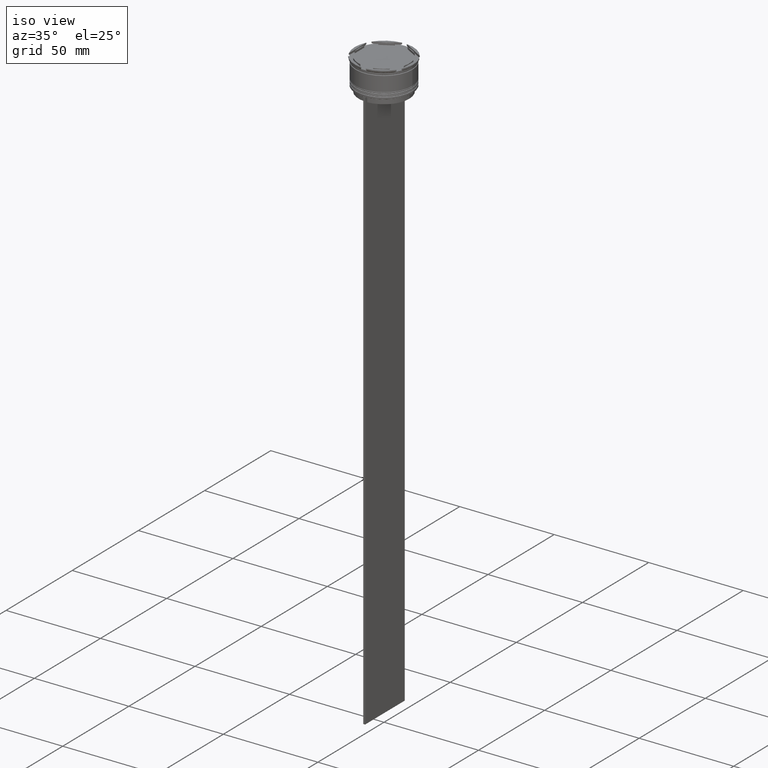
[diagram: clean part render]
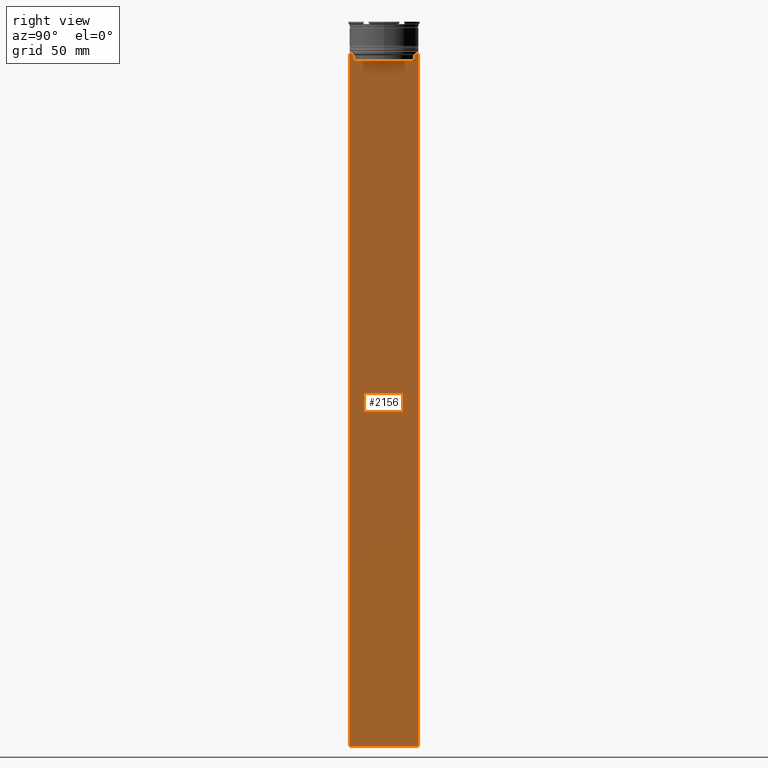
[diagram: tour spotlight — one face highlighted and labeled with its STEP entity id]
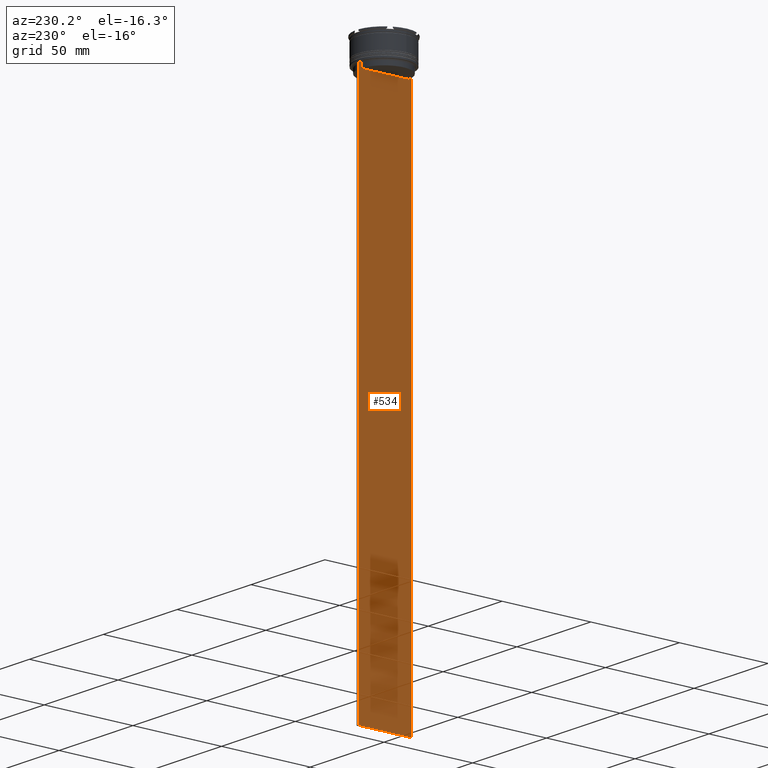
[diagram: tour spotlight — one face highlighted and labeled with its STEP entity id]
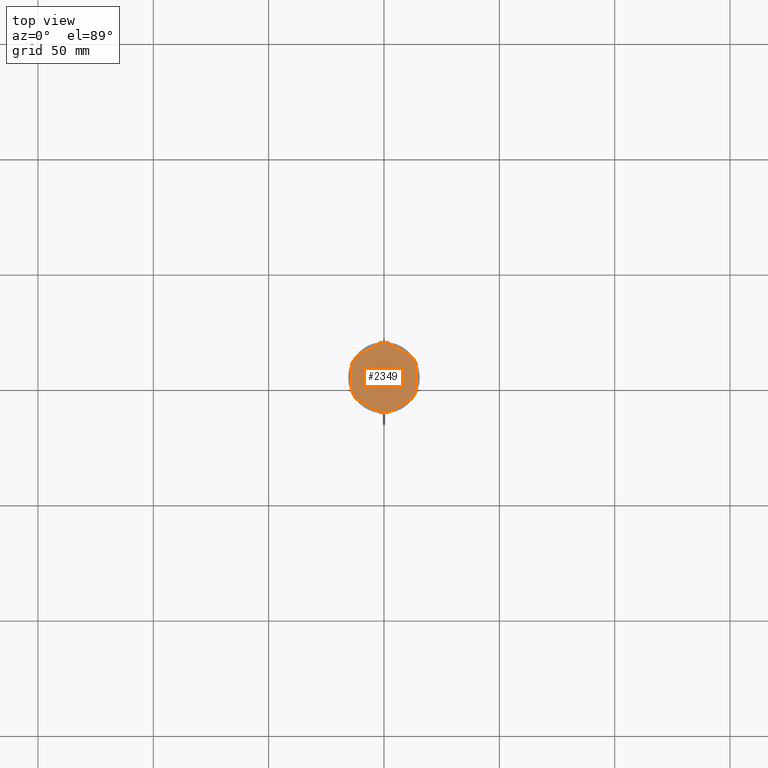
[diagram: tour spotlight — one face highlighted and labeled with its STEP entity id]
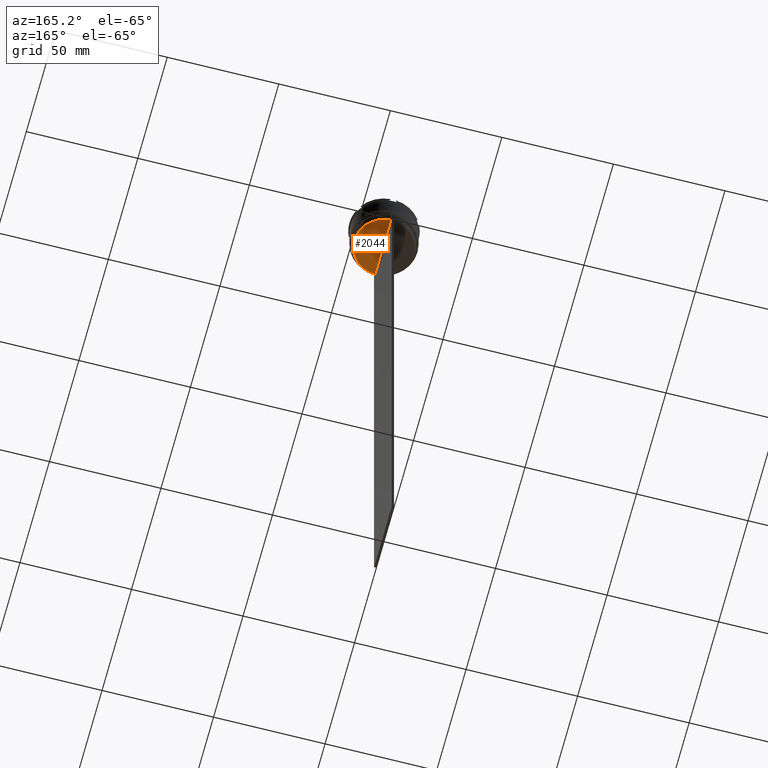
[diagram: tour spotlight — one face highlighted and labeled with its STEP entity id]
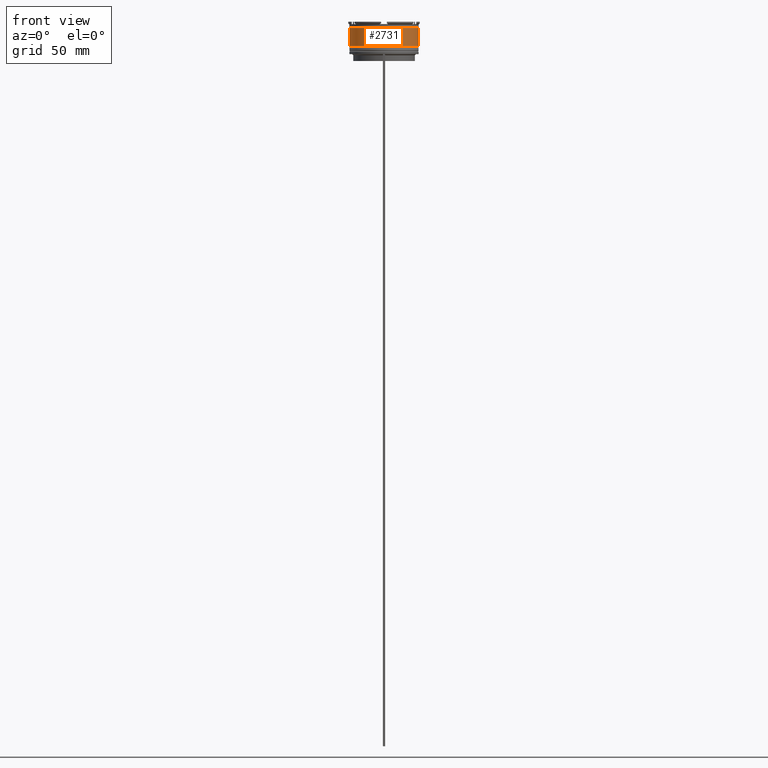
[diagram: tour spotlight — one face highlighted and labeled with its STEP entity id]
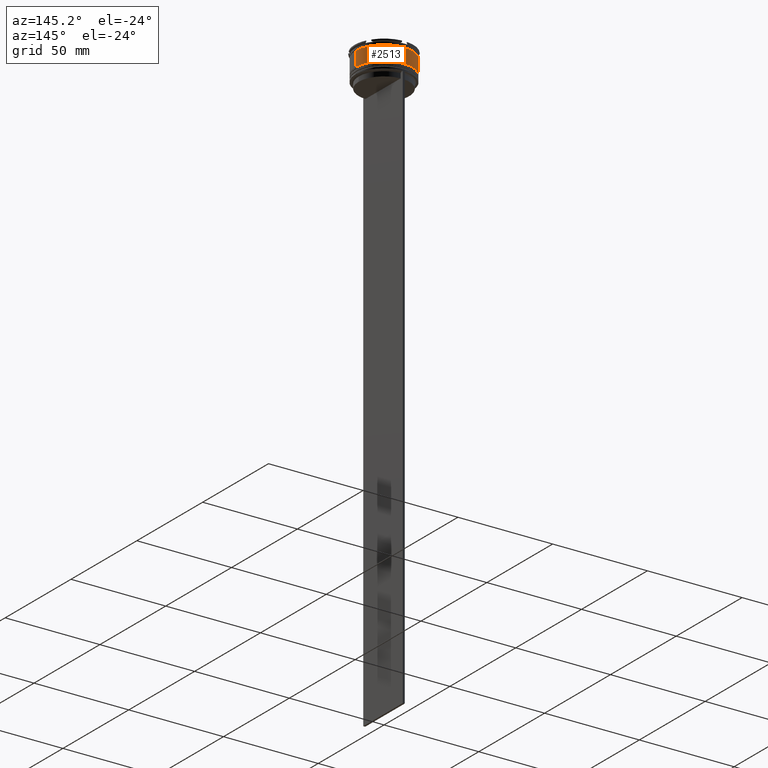
[diagram: tour spotlight — one face highlighted and labeled with its STEP entity id]
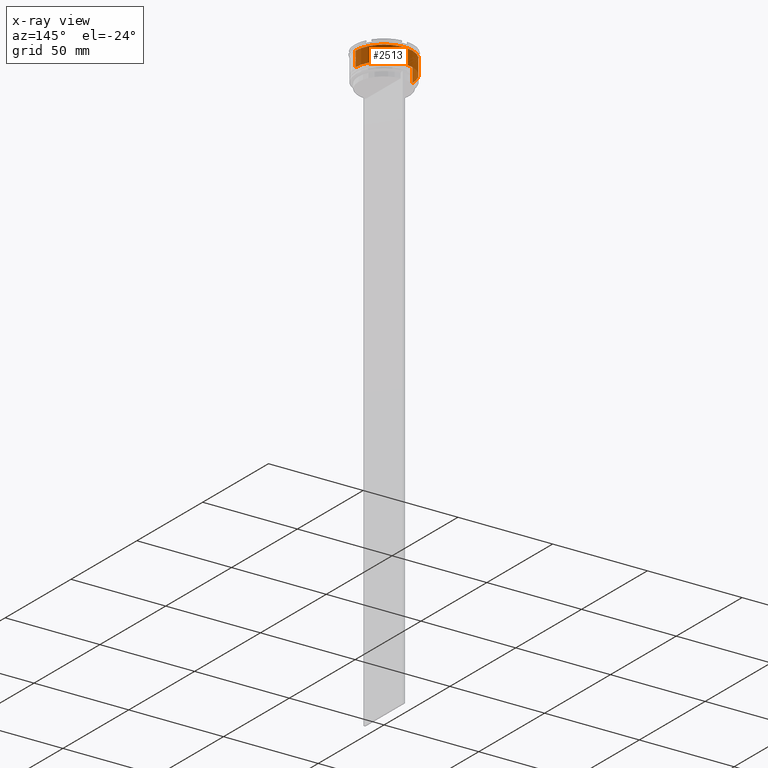
[diagram: x-ray of the same camera — body ghosted, this tour face saturated]
A machine part: a face-by-face anatomy tour. The part has 100 B-rep faces; the first image is the clean iso view, then the 6 largest visible faces are spotlighted one at a time (largest first), each with its STEP entity span.

Face 1 — right view, entity #2156. In plain terms, the highlighted planar face has unit normal (-1, 0, 0).
Definition (entity closure, byte-faithful):
#30 = DIRECTION ( 'NONE',  ( 0.000000000000000000, -1.000000000000000000, 0.000000000000000000 ) ) ;
#59 = CARTESIAN_POINT ( 'NONE',  ( 0.5000000000000001110, 13.39066839257847263, -14.49999999999999822 ) ) ;
#78 = AXIS2_PLACEMENT_3D ( 'NONE', #2339, #344, #1903 ) ;
#114 = EDGE_CURVE ( 'NONE', #909, #617, #241, .T. ) ;
#123 = ORIENTED_EDGE ( 'NONE', *, *, #451, .T. ) ;
#145 = CARTESIAN_POINT ( 'NONE',  ( 0.5000000000000001110, -13.39066839257847086, -17.00000000000000000 ) ) ;
#151 = EDGE_CURVE ( 'NONE', #1222, #1188, #2480, .T. ) ;
#200 = VERTEX_POINT ( 'NONE', #59 ) ;
#236 = DIRECTION ( 'NONE',  ( 0.000000000000000000, -1.000000000000000000, 0.000000000000000000 ) ) ;
#241 = LINE ( 'NONE', #2452, #2079 ) ;
#252 = VERTEX_POINT ( 'NONE', #1183 ) ;
#292 = EDGE_CURVE ( 'NONE', #252, #2075, #1887, .T. ) ;
#302 = LINE ( 'NONE', #1171, #1402 ) ;
#325 = ORIENTED_EDGE ( 'NONE', *, *, #2605, .T. ) ;
#344 = DIRECTION ( 'NONE',  ( -1.000000000000000000, 0.000000000000000000, 0.000000000000000000 ) ) ;
#382 = ORIENTED_EDGE ( 'NONE', *, *, #2587, .T. ) ;
#412 = VERTEX_POINT ( 'NONE', #2182 ) ;
#451 = EDGE_CURVE ( 'NONE', #412, #909, #2813, .T. ) ;
#455 = CARTESIAN_POINT ( 'NONE',  ( 0.5000000000000001110, -15.00000000000000355, -14.00000000000000178 ) ) ;
#544 = ORIENTED_EDGE ( 'NONE', *, *, #1010, .T. ) ;
#546 = DIRECTION ( 'NONE',  ( 0.000000000000000000, 1.000000000000000000, 0.000000000000000000 ) ) ;
#556 = VECTOR ( 'NONE', #750, 1000.000000000000000 ) ;
#571 = CARTESIAN_POINT ( 'NONE',  ( 0.5000000000000001110, -13.39066839257847263, -14.49999999999999822 ) ) ;
#574 = ORIENTED_EDGE ( 'NONE', *, *, #151, .T. ) ;
#617 = VERTEX_POINT ( 'NONE', #571 ) ;
#656 = ORIENTED_EDGE ( 'NONE', *, *, #1392, .F. ) ;
#736 = CARTESIAN_POINT ( 'NONE',  ( 0.5000000000000001110, -15.00000000000000355, -14.00000000000000178 ) ) ;
#750 = DIRECTION ( 'NONE',  ( 0.000000000000000000, 0.000000000000000000, -1.000000000000000000 ) ) ;
#772 = CARTESIAN_POINT ( 'NONE',  ( 0.5000000000000001110, -15.00000000000000355, -314.0000000000000000 ) ) ;
#816 = CARTESIAN_POINT ( 'NONE',  ( 0.5000000000000001110, -13.89100428334828230, -14.00000000000000178 ) ) ;
#850 = VECTOR ( 'NONE', #236, 1000.000000000000000 ) ;
#866 = DIRECTION ( 'NONE',  ( 0.000000000000000000, 0.000000000000000000, -1.000000000000000000 ) ) ;
#877 = VERTEX_POINT ( 'NONE', #816 ) ;
#909 = VERTEX_POINT ( 'NONE', #145 ) ;
#1010 = EDGE_CURVE ( 'NONE', #200, #412, #2058, .T. ) ;
#1147 = ORIENTED_EDGE ( 'NONE', *, *, #1269, .T. ) ;
#1163 = VECTOR ( 'NONE', #1343, 1000.000000000000000 ) ;
#1171 = CARTESIAN_POINT ( 'NONE',  ( 0.5000000000000001110, -15.00000000000000355, -14.00000000000000178 ) ) ;
#1183 = CARTESIAN_POINT ( 'NONE',  ( 0.5000000000000001110, -15.00000000000000355, -314.0000000000000000 ) ) ;
#1188 = VERTEX_POINT ( 'NONE', #1815 ) ;
#1191 = CARTESIAN_POINT ( 'NONE',  ( 0.5000000000000001110, 13.55744911232272543, -14.33333542444994002 ) ) ;
#1222 = VERTEX_POINT ( 'NONE', #2636 ) ;
#1263 = CARTESIAN_POINT ( 'NONE',  ( 0.5000000000000001110, 14.99999999999999645, 16.01666203960726165 ) ) ;
#1269 = EDGE_CURVE ( 'NONE', #1188, #200, #2140, .T. ) ;
#1277 = CARTESIAN_POINT ( 'NONE',  ( 0.5000000000000001110, -13.39066839257847263, -14.49999999999999822 ) ) ;
#1343 = DIRECTION ( 'NONE',  ( 0.000000000000000000, -1.000000000000000000, 0.000000000000000000 ) ) ;
#1360 = DIRECTION ( 'NONE',  ( -0.000000000000000000, -0.000000000000000000, 1.000000000000000000 ) ) ;
#1392 = EDGE_CURVE ( 'NONE', #1519, #2075, #2628, .T. ) ;
#1400 = VECTOR ( 'NONE', #30, 1000.000000000000000 ) ;
#1402 = VECTOR ( 'NONE', #1861, 1000.000000000000000 ) ;
#1417 = ORIENTED_EDGE ( 'NONE', *, *, #1606, .T. ) ;
#1446 = CARTESIAN_POINT ( 'NONE',  ( 0.5000000000000001110, 13.72422766736833744, -14.16666868251365052 ) ) ;
#1498 = CARTESIAN_POINT ( 'NONE',  ( 0.5000000000000001110, -14.89160837518903513, -14.00000000000000178 ) ) ;
#1508 = CARTESIAN_POINT ( 'NONE',  ( 0.5000000000000001110, -15.00000000000000355, -14.00000000000000178 ) ) ;
#1519 = VERTEX_POINT ( 'NONE', #2692 ) ;
#1530 = ORIENTED_EDGE ( 'NONE', *, *, #114, .T. ) ;
#1578 = ORIENTED_EDGE ( 'NONE', *, *, #292, .T. ) ;
#1606 = EDGE_CURVE ( 'NONE', #1722, #252, #2557, .T. ) ;
#1722 = VERTEX_POINT ( 'NONE', #1508 ) ;
#1763 = CARTESIAN_POINT ( 'NONE',  ( 0.5000000000000001110, -15.00000000000000355, -14.00000000000000178 ) ) ;
#1784 = LINE ( 'NONE', #736, #1400 ) ;
#1815 = CARTESIAN_POINT ( 'NONE',  ( 0.5000000000000001110, 13.89100428334828230, -14.00000000000000178 ) ) ;
#1861 = DIRECTION ( 'NONE',  ( 0.000000000000000000, -1.000000000000000000, 0.000000000000000000 ) ) ;
#1887 = LINE ( 'NONE', #772, #1949 ) ;
#1903 = DIRECTION ( 'NONE',  ( 0.000000000000000000, 0.000000000000000000, 1.000000000000000000 ) ) ;
#1921 = CARTESIAN_POINT ( 'NONE',  ( 0.5000000000000001110, 13.39066839257847263, -14.49999999999999822 ) ) ;
#1923 = CARTESIAN_POINT ( 'NONE',  ( 0.5000000000000001110, 13.39066839257847263, 0.000000000000000000 ) ) ;
#1929 = B_SPLINE_CURVE_WITH_KNOTS ( 'NONE', 3,
 ( #1277, #2643, #2164, #2216 ),
 .UNSPECIFIED., .F., .F.,
 ( 4, 4 ),
 ( 0.06160226316123722928, 0.06231007364084064498 ),
 .UNSPECIFIED. ) ;
#1934 = CARTESIAN_POINT ( 'NONE',  ( 0.5000000000000001110, 14.99999999999999645, -314.0000000000000000 ) ) ;
#1949 = VECTOR ( 'NONE', #546, 1000.000000000000000 ) ;
#1963 = EDGE_CURVE ( 'NONE', #2570, #1722, #302, .T. ) ;
#1979 = LINE ( 'NONE', #1763, #850 ) ;
#2005 = VECTOR ( 'NONE', #866, 1000.000000000000000 ) ;
#2058 = LINE ( 'NONE', #1923, #556 ) ;
#2075 = VERTEX_POINT ( 'NONE', #1934 ) ;
#2079 = VECTOR ( 'NONE', #1360, 1000.000000000000000 ) ;
#2140 = B_SPLINE_CURVE_WITH_KNOTS ( 'NONE', 3,
 ( #2312, #1446, #1191, #1921 ),
 .UNSPECIFIED., .F., .F.,
 ( 4, 4 ),
 ( 0.02359665025569774102, 0.02430399458637444096 ),
 .UNSPECIFIED. ) ;
#2156 = ADVANCED_FACE ( 'NONE', ( #2828 ), #2568, .F. ) ;
#2164 = CARTESIAN_POINT ( 'NONE',  ( 0.5000000000000001110, -13.72422766745777167, -14.16666868242427135 ) ) ;
#2166 = DIRECTION ( 'NONE',  ( 0.000000000000000000, -1.000000000000000000, 0.000000000000000000 ) ) ;
#2182 = CARTESIAN_POINT ( 'NONE',  ( 0.5000000000000001110, 13.39066839257847086, -17.00000000000000000 ) ) ;
#2186 = VECTOR ( 'NONE', #2166, 1000.000000000000000 ) ;
#2216 = CARTESIAN_POINT ( 'NONE',  ( 0.5000000000000001110, -13.89100428334828230, -14.00000000000000178 ) ) ;
#2253 = VECTOR ( 'NONE', #2773, 1000.000000000000000 ) ;
#2312 = CARTESIAN_POINT ( 'NONE',  ( 0.5000000000000001110, 13.89100428334828230, -14.00000000000000178 ) ) ;
#2339 = CARTESIAN_POINT ( 'NONE',  ( 0.5000000000000001110, -15.00000000000000355, 16.01666203960726165 ) ) ;
#2400 = EDGE_LOOP ( 'NONE', ( #574, #1147, #544, #123, #1530, #325, #382, #2881, #1417, #1578, #656, #2690 ) ) ;
#2452 = CARTESIAN_POINT ( 'NONE',  ( 0.5000000000000001110, -13.39066839257847263, 0.000000000000000000 ) ) ;
#2480 = LINE ( 'NONE', #455, #1163 ) ;
#2557 = LINE ( 'NONE', #2736, #2253 ) ;
#2568 = PLANE ( 'NONE',  #78 ) ;
#2570 = VERTEX_POINT ( 'NONE', #1498 ) ;
#2587 = EDGE_CURVE ( 'NONE', #877, #2570, #1979, .T. ) ;
#2605 = EDGE_CURVE ( 'NONE', #617, #877, #1929, .T. ) ;
#2628 = LINE ( 'NONE', #1263, #2005 ) ;
#2631 = CARTESIAN_POINT ( 'NONE',  ( 0.5000000000000001110, 13.40000000000000391, -17.00000000000000000 ) ) ;
#2636 = CARTESIAN_POINT ( 'NONE',  ( 0.5000000000000001110, 14.89160837518903513, -14.00000000000000178 ) ) ;
#2643 = CARTESIAN_POINT ( 'NONE',  ( 0.5000000000000001110, -13.55744911241550099, -14.33333542435722663 ) ) ;
#2688 = EDGE_CURVE ( 'NONE', #1519, #1222, #1784, .T. ) ;
#2690 = ORIENTED_EDGE ( 'NONE', *, *, #2688, .T. ) ;
#2692 = CARTESIAN_POINT ( 'NONE',  ( 0.5000000000000001110, 14.99999999999999645, -14.00000000000000178 ) ) ;
#2736 = CARTESIAN_POINT ( 'NONE',  ( 0.5000000000000001110, -15.00000000000000355, 16.01666203960726165 ) ) ;
#2773 = DIRECTION ( 'NONE',  ( 0.000000000000000000, 0.000000000000000000, -1.000000000000000000 ) ) ;
#2813 = LINE ( 'NONE', #2631, #2186 ) ;
#2828 = FACE_OUTER_BOUND ( 'NONE', #2400, .T. ) ;
#2881 = ORIENTED_EDGE ( 'NONE', *, *, #1963, .T. ) ;

Face 2 — auxiliary view, entity #534. In plain terms, the highlighted planar face has unit normal (-1, 0, 0).
Definition (entity closure, byte-faithful):
#14 = ORIENTED_EDGE ( 'NONE', *, *, #1876, .F. ) ;
#55 = CARTESIAN_POINT ( 'NONE',  ( -0.4999999999999998890, 14.99999999999999645, -314.0000000000000000 ) ) ;
#87 = ORIENTED_EDGE ( 'NONE', *, *, #1848, .F. ) ;
#128 = DIRECTION ( 'NONE',  ( 0.000000000000000000, -1.000000000000000000, 0.000000000000000000 ) ) ;
#158 = LINE ( 'NONE', #584, #1868 ) ;
#215 = LINE ( 'NONE', #440, #2845 ) ;
#227 = FACE_OUTER_BOUND ( 'NONE', #1407, .T. ) ;
#267 = LINE ( 'NONE', #2276, #1678 ) ;
#288 = EDGE_CURVE ( 'NONE', #667, #2224, #563, .T. ) ;
#296 = LINE ( 'NONE', #1881, #2762 ) ;
#303 = EDGE_CURVE ( 'NONE', #588, #2543, #787, .T. ) ;
#323 = DIRECTION ( 'NONE',  ( 0.000000000000000000, -1.000000000000000000, 0.000000000000000000 ) ) ;
#336 = CARTESIAN_POINT ( 'NONE',  ( -0.4999999999999998890, 13.89100428334828230, -14.00000000000000178 ) ) ;
#343 = DIRECTION ( 'NONE',  ( -0.000000000000000000, -0.000000000000000000, 1.000000000000000000 ) ) ;
#345 = ORIENTED_EDGE ( 'NONE', *, *, #1590, .F. ) ;
#386 = ORIENTED_EDGE ( 'NONE', *, *, #2268, .F. ) ;
#440 = CARTESIAN_POINT ( 'NONE',  ( -0.4999999999999998890, -15.00000000000000355, -314.0000000000000000 ) ) ;
#453 = CARTESIAN_POINT ( 'NONE',  ( -0.4999999999999998890, -15.00000000000000355, -14.00000000000000178 ) ) ;
#534 = ADVANCED_FACE ( 'NONE', ( #227 ), #1983, .T. ) ;
#563 = LINE ( 'NONE', #2566, #1532 ) ;
#584 = CARTESIAN_POINT ( 'NONE',  ( -0.4999999999999998890, -15.00000000000000355, -14.00000000000000178 ) ) ;
#588 = VERTEX_POINT ( 'NONE', #2185 ) ;
#601 = CARTESIAN_POINT ( 'NONE',  ( -0.4999999999999998890, 13.72422766736833566, -14.16666868251365052 ) ) ;
#623 = CARTESIAN_POINT ( 'NONE',  ( -0.4999999999999998890, 13.39066839257847263, -14.49999999999999822 ) ) ;
#635 = LINE ( 'NONE', #1551, #2244 ) ;
#646 = LINE ( 'NONE', #453, #1585 ) ;
#667 = VERTEX_POINT ( 'NONE', #2671 ) ;
#669 = VERTEX_POINT ( 'NONE', #673 ) ;
#672 = VECTOR ( 'NONE', #1399, 1000.000000000000000 ) ;
#673 = CARTESIAN_POINT ( 'NONE',  ( -0.4999999999999998890, -14.89160837518903513, -14.00000000000000178 ) ) ;
#711 = VERTEX_POINT ( 'NONE', #2620 ) ;
#771 = CARTESIAN_POINT ( 'NONE',  ( -0.4999999999999998890, -13.39066839257847263, -14.49999999999999822 ) ) ;
#787 = LINE ( 'NONE', #1455, #1770 ) ;
#827 = VERTEX_POINT ( 'NONE', #55 ) ;
#940 = VERTEX_POINT ( 'NONE', #2859 ) ;
#986 = ORIENTED_EDGE ( 'NONE', *, *, #1961, .F. ) ;
#1100 = VERTEX_POINT ( 'NONE', #1685 ) ;
#1124 = ORIENTED_EDGE ( 'NONE', *, *, #1227, .F. ) ;
#1157 = CARTESIAN_POINT ( 'NONE',  ( -0.4999999999999998890, -13.72422766745777345, -14.16666868242426958 ) ) ;
#1177 = CARTESIAN_POINT ( 'NONE',  ( -0.4999999999999998890, -15.00000000000000355, 16.01666203960726165 ) ) ;
#1227 = EDGE_CURVE ( 'NONE', #1100, #2277, #635, .T. ) ;
#1251 = ORIENTED_EDGE ( 'NONE', *, *, #1751, .F. ) ;
#1252 = AXIS2_PLACEMENT_3D ( 'NONE', #1177, #2875, #2646 ) ;
#1273 = DIRECTION ( 'NONE',  ( 0.000000000000000000, -1.000000000000000000, 0.000000000000000000 ) ) ;
#1293 = CARTESIAN_POINT ( 'NONE',  ( -0.4999999999999998890, 13.39066839257847086, -17.00000000000000000 ) ) ;
#1399 = DIRECTION ( 'NONE',  ( 0.000000000000000000, -1.000000000000000000, 0.000000000000000000 ) ) ;
#1407 = EDGE_LOOP ( 'NONE', ( #87, #1987, #2012, #2357, #386, #986, #2682, #1251, #14, #1884, #345, #1124 ) ) ;
#1412 = CARTESIAN_POINT ( 'NONE',  ( -0.4999999999999998890, -13.39066839257847263, -14.49999999999999822 ) ) ;
#1455 = CARTESIAN_POINT ( 'NONE',  ( -0.4999999999999998890, -13.39066839257847263, 0.000000000000000000 ) ) ;
#1532 = VECTOR ( 'NONE', #128, 1000.000000000000000 ) ;
#1551 = CARTESIAN_POINT ( 'NONE',  ( -0.4999999999999998890, 13.39066839257847263, 0.000000000000000000 ) ) ;
#1585 = VECTOR ( 'NONE', #2205, 1000.000000000000000 ) ;
#1590 = EDGE_CURVE ( 'NONE', #2277, #588, #296, .T. ) ;
#1591 = CARTESIAN_POINT ( 'NONE',  ( -0.4999999999999998890, -13.55744911241550277, -14.33333542435722485 ) ) ;
#1602 = CARTESIAN_POINT ( 'NONE',  ( -0.4999999999999998890, -15.00000000000000355, -14.00000000000000178 ) ) ;
#1626 = VECTOR ( 'NONE', #1915, 1000.000000000000000 ) ;
#1628 = DIRECTION ( 'NONE',  ( 0.000000000000000000, 0.000000000000000000, -1.000000000000000000 ) ) ;
#1644 = VERTEX_POINT ( 'NONE', #336 ) ;
#1678 = VECTOR ( 'NONE', #1628, 1000.000000000000000 ) ;
#1685 = CARTESIAN_POINT ( 'NONE',  ( -0.4999999999999998890, 13.39066839257847263, -14.49999999999999822 ) ) ;
#1736 = CARTESIAN_POINT ( 'NONE',  ( -0.4999999999999998890, 14.89160837518903513, -14.00000000000000178 ) ) ;
#1751 = EDGE_CURVE ( 'NONE', #711, #669, #158, .T. ) ;
#1757 = CARTESIAN_POINT ( 'NONE',  ( -0.4999999999999998890, 13.55744911232272543, -14.33333542444994002 ) ) ;
#1770 = VECTOR ( 'NONE', #343, 1000.000000000000000 ) ;
#1848 = EDGE_CURVE ( 'NONE', #1644, #1100, #2420, .T. ) ;
#1868 = VECTOR ( 'NONE', #1273, 1000.000000000000000 ) ;
#1876 = EDGE_CURVE ( 'NONE', #2543, #711, #2679, .T. ) ;
#1881 = CARTESIAN_POINT ( 'NONE',  ( -0.4999999999999998890, 13.40000000000000391, -17.00000000000000000 ) ) ;
#1884 = ORIENTED_EDGE ( 'NONE', *, *, #303, .F. ) ;
#1915 = DIRECTION ( 'NONE',  ( 0.000000000000000000, 0.000000000000000000, -1.000000000000000000 ) ) ;
#1941 = EDGE_CURVE ( 'NONE', #2224, #1644, #2723, .T. ) ;
#1961 = EDGE_CURVE ( 'NONE', #2547, #940, #267, .T. ) ;
#1983 = PLANE ( 'NONE',  #1252 ) ;
#1987 = ORIENTED_EDGE ( 'NONE', *, *, #1941, .F. ) ;
#2012 = ORIENTED_EDGE ( 'NONE', *, *, #288, .F. ) ;
#2185 = CARTESIAN_POINT ( 'NONE',  ( -0.4999999999999998890, -13.39066839257847086, -17.00000000000000000 ) ) ;
#2205 = DIRECTION ( 'NONE',  ( 0.000000000000000000, -1.000000000000000000, 0.000000000000000000 ) ) ;
#2224 = VERTEX_POINT ( 'NONE', #1736 ) ;
#2244 = VECTOR ( 'NONE', #2851, 1000.000000000000000 ) ;
#2254 = EDGE_CURVE ( 'NONE', #669, #2547, #646, .T. ) ;
#2268 = EDGE_CURVE ( 'NONE', #940, #827, #215, .T. ) ;
#2276 = CARTESIAN_POINT ( 'NONE',  ( -0.4999999999999998890, -15.00000000000000355, 16.01666203960726165 ) ) ;
#2277 = VERTEX_POINT ( 'NONE', #1293 ) ;
#2305 = LINE ( 'NONE', #2348, #1626 ) ;
#2348 = CARTESIAN_POINT ( 'NONE',  ( -0.4999999999999998890, 14.99999999999999645, 16.01666203960726165 ) ) ;
#2357 = ORIENTED_EDGE ( 'NONE', *, *, #2484, .T. ) ;
#2398 = DIRECTION ( 'NONE',  ( 0.000000000000000000, 1.000000000000000000, 0.000000000000000000 ) ) ;
#2420 = B_SPLINE_CURVE_WITH_KNOTS ( 'NONE', 3,
 ( #2639, #601, #1757, #623 ),
 .UNSPECIFIED., .F., .F.,
 ( 4, 4 ),
 ( 0.02359665025569773755, 0.02430399458637444096 ),
 .UNSPECIFIED. ) ;
#2484 = EDGE_CURVE ( 'NONE', #667, #827, #2305, .T. ) ;
#2543 = VERTEX_POINT ( 'NONE', #771 ) ;
#2547 = VERTEX_POINT ( 'NONE', #2798 ) ;
#2566 = CARTESIAN_POINT ( 'NONE',  ( -0.4999999999999998890, -15.00000000000000355, -14.00000000000000178 ) ) ;
#2620 = CARTESIAN_POINT ( 'NONE',  ( -0.4999999999999998890, -13.89100428334828230, -14.00000000000000178 ) ) ;
#2639 = CARTESIAN_POINT ( 'NONE',  ( -0.4999999999999998890, 13.89100428334828230, -14.00000000000000178 ) ) ;
#2646 = DIRECTION ( 'NONE',  ( 0.000000000000000000, 0.000000000000000000, 1.000000000000000000 ) ) ;
#2671 = CARTESIAN_POINT ( 'NONE',  ( -0.4999999999999998890, 14.99999999999999645, -14.00000000000000178 ) ) ;
#2679 = B_SPLINE_CURVE_WITH_KNOTS ( 'NONE', 3,
 ( #1412, #1591, #1157, #2746 ),
 .UNSPECIFIED., .F., .F.,
 ( 4, 4 ),
 ( 0.06160226316123729867, 0.06231007364084071437 ),
 .UNSPECIFIED. ) ;
#2682 = ORIENTED_EDGE ( 'NONE', *, *, #2254, .F. ) ;
#2723 = LINE ( 'NONE', #1602, #672 ) ;
#2746 = CARTESIAN_POINT ( 'NONE',  ( -0.4999999999999998890, -13.89100428334828230, -14.00000000000000178 ) ) ;
#2762 = VECTOR ( 'NONE', #323, 1000.000000000000000 ) ;
#2798 = CARTESIAN_POINT ( 'NONE',  ( -0.4999999999999998890, -15.00000000000000355, -14.00000000000000178 ) ) ;
#2845 = VECTOR ( 'NONE', #2398, 1000.000000000000000 ) ;
#2851 = DIRECTION ( 'NONE',  ( 0.000000000000000000, 0.000000000000000000, -1.000000000000000000 ) ) ;
#2859 = CARTESIAN_POINT ( 'NONE',  ( -0.4999999999999998890, -15.00000000000000355, -314.0000000000000000 ) ) ;
#2875 = DIRECTION ( 'NONE',  ( -1.000000000000000000, 0.000000000000000000, 0.000000000000000000 ) ) ;

Face 3 — top view, entity #2349. In plain terms, the highlighted planar face has unit normal (0, 0, 1).
Definition (entity closure, byte-faithful):
#13 = EDGE_CURVE ( 'NONE', #217, #231, #1346, .T. ) ;
#25 = DIRECTION ( 'NONE',  ( 0.000000000000000000, 0.000000000000000000, 1.000000000000000000 ) ) ;
#35 = VERTEX_POINT ( 'NONE', #1096 ) ;
#43 = FACE_BOUND ( 'NONE', #2838, .T. ) ;
#47 = CARTESIAN_POINT ( 'NONE',  ( -3.347619946770386434, 13.07835772151782905, -1.000000000000000888 ) ) ;
#72 = DIRECTION ( 'NONE',  ( 1.000000000000000000, 0.000000000000000000, 0.000000000000000000 ) ) ;
#82 = FACE_BOUND ( 'NONE', #1111, .T. ) ;
#90 = VECTOR ( 'NONE', #1330, 1000.000000000000114 ) ;
#109 = EDGE_CURVE ( 'NONE', #1905, #2100, #1078, .T. ) ;
#116 = DIRECTION ( 'NONE',  ( -0.8660254037844385966, 0.5000000000000001110, 0.000000000000000000 ) ) ;
#121 = DIRECTION ( 'NONE',  ( -0.000000000000000000, -0.000000000000000000, -1.000000000000000000 ) ) ;
#124 = EDGE_CURVE ( 'NONE', #837, #1679, #361, .T. ) ;
#133 = CARTESIAN_POINT ( 'NONE',  ( 3.347619946770397537, 13.07835772151782905, -1.000000000000000888 ) ) ;
#138 = VECTOR ( 'NONE', #116, 1000.000000000000000 ) ;
#139 = DIRECTION ( 'NONE',  ( -2.311253228826398661E-16, -1.000000000000000000, 0.000000000000000000 ) ) ;
#140 = AXIS2_PLACEMENT_3D ( 'NONE', #2019, #25, #2256 ) ;
#148 = CARTESIAN_POINT ( 'NONE',  ( 0.000000000000000000, 0.000000000000000000, -1.000000000000000000 ) ) ;
#155 = CIRCLE ( 'NONE', #1968, 13.50000000000000000 ) ;
#188 = ORIENTED_EDGE ( 'NONE', *, *, #1669, .F. ) ;
#191 = AXIS2_PLACEMENT_3D ( 'NONE', #2873, #2658, #2861 ) ;
#198 = VECTOR ( 'NONE', #2393, 1000.000000000000000 ) ;
#204 = EDGE_LOOP ( 'NONE', ( #353, #294 ) ) ;
#217 = VERTEX_POINT ( 'NONE', #1190 ) ;
#219 = ORIENTED_EDGE ( 'NONE', *, *, #1149, .T. ) ;
#231 = VERTEX_POINT ( 'NONE', #1023 ) ;
#246 = CIRCLE ( 'NONE', #370, 15.19999999999999929 ) ;
#265 = CARTESIAN_POINT ( 'NONE',  ( 0.000000000000000000, 0.000000000000000000, -1.000000000000000000 ) ) ;
#266 = CARTESIAN_POINT ( 'NONE',  ( 0.000000000000000000, 0.000000000000000000, -1.000000000000000000 ) ) ;
#279 = ORIENTED_EDGE ( 'NONE', *, *, #1338, .F. ) ;
#282 = DIRECTION ( 'NONE',  ( 0.000000000000000000, 0.000000000000000000, 1.000000000000000000 ) ) ;
#294 = ORIENTED_EDGE ( 'NONE', *, *, #1650, .F. ) ;
#300 = EDGE_CURVE ( 'NONE', #1563, #1489, #1468, .T. ) ;
#306 = LINE ( 'NONE', #1428, #806 ) ;
#311 = EDGE_CURVE ( 'NONE', #1071, #2811, #1813, .T. ) ;
#315 = CIRCLE ( 'NONE', #789, 15.19999999999999929 ) ;
#317 = EDGE_CURVE ( 'NONE', #2591, #2655, #315, .T. ) ;
#350 = LINE ( 'NONE', #1241, #1789 ) ;
#353 = ORIENTED_EDGE ( 'NONE', *, *, #2273, .F. ) ;
#354 = EDGE_CURVE ( 'NONE', #532, #2824, #2709, .T. ) ;
#361 = CIRCLE ( 'NONE', #2789, 15.19999999999999929 ) ;
#370 = AXIS2_PLACEMENT_3D ( 'NONE', #1962, #831, #1930 ) ;
#371 = EDGE_CURVE ( 'NONE', #532, #2423, #1054, .T. ) ;
#385 = ORIENTED_EDGE ( 'NONE', *, *, #13, .F. ) ;
#430 = VERTEX_POINT ( 'NONE', #1313 ) ;
#454 = LINE ( 'NONE', #1766, #90 ) ;
#462 = CARTESIAN_POINT ( 'NONE',  ( -9.652380053229617118, -9.438302776877577571, -1.000000000000000888 ) ) ;
#467 = DIRECTION ( 'NONE',  ( 0.000000000000000000, 0.000000000000000000, 1.000000000000000000 ) ) ;
#502 = FACE_OUTER_BOUND ( 'NONE', #1020, .T. ) ;
#503 = AXIS2_PLACEMENT_3D ( 'NONE', #2759, #1234, #72 ) ;
#516 = CARTESIAN_POINT ( 'NONE',  ( -12.12640224719051751, 9.164625935592393802, -1.000000000000000000 ) ) ;
#531 = ORIENTED_EDGE ( 'NONE', *, *, #2258, .T. ) ;
#532 = VERTEX_POINT ( 'NONE', #1517 ) ;
#539 = EDGE_CURVE ( 'NONE', #2267, #1275, #454, .T. ) ;
#543 = VERTEX_POINT ( 'NONE', #684 ) ;
#547 = DIRECTION ( 'NONE',  ( -0.8660254037844385966, -0.4999999999999999445, 0.000000000000000000 ) ) ;
#551 = VECTOR ( 'NONE', #2203, 1000.000000000000000 ) ;
#597 = DIRECTION ( 'NONE',  ( 0.000000000000000000, 0.000000000000000000, 1.000000000000000000 ) ) ;
#611 = CARTESIAN_POINT ( 'NONE',  ( 1.873597752809482486, -15.08408537037188779, -1.000000000000000000 ) ) ;
#634 = CARTESIAN_POINT ( 'NONE',  ( 0.000000000000000000, 0.000000000000000000, -1.000000000000000000 ) ) ;
#684 = CARTESIAN_POINT ( 'NONE',  ( -14.00000000000000178, -5.919459434779493989, -1.000000000000000000 ) ) ;
#688 = ORIENTED_EDGE ( 'NONE', *, *, #1504, .F. ) ;
#729 = ORIENTED_EDGE ( 'NONE', *, *, #958, .F. ) ;
#735 = DIRECTION ( 'NONE',  ( 1.000000000000000000, -9.769962616701377556E-15, 0.000000000000000000 ) ) ;
#755 = EDGE_CURVE ( 'NONE', #1043, #1905, #1816, .T. ) ;
#757 = ORIENTED_EDGE ( 'NONE', *, *, #755, .F. ) ;
#765 = ORIENTED_EDGE ( 'NONE', *, *, #2176, .F. ) ;
#789 = AXIS2_PLACEMENT_3D ( 'NONE', #148, #1106, #870 ) ;
#796 = VECTOR ( 'NONE', #2220, 1000.000000000000114 ) ;
#805 = ORIENTED_EDGE ( 'NONE', *, *, #354, .F. ) ;
#806 = VECTOR ( 'NONE', #139, 1000.000000000000000 ) ;
#830 = VECTOR ( 'NONE', #2847, 1000.000000000000000 ) ;
#831 = DIRECTION ( 'NONE',  ( -0.000000000000000000, -0.000000000000000000, -1.000000000000000000 ) ) ;
#837 = VERTEX_POINT ( 'NONE', #956 ) ;
#856 = CARTESIAN_POINT ( 'NONE',  ( -8.673617379884035472E-16, -15.01110699893027167, -1.000000000000000888 ) ) ;
#870 = DIRECTION ( 'NONE',  ( 1.000000000000000000, 0.000000000000000000, 0.000000000000000000 ) ) ;
#883 = CARTESIAN_POINT ( 'NONE',  ( -9.652380053229617118, 9.438302776877577571, -1.000000000000000888 ) ) ;
#898 = LINE ( 'NONE', #1051, #198 ) ;
#918 = DIRECTION ( 'NONE',  ( 0.000000000000000000, 0.000000000000000000, 1.000000000000000000 ) ) ;
#930 = CARTESIAN_POINT ( 'NONE',  ( 0.000000000000000000, 0.000000000000000000, -1.000000000000000000 ) ) ;
#932 = DIRECTION ( 'NONE',  ( 1.000000000000000000, 0.000000000000000000, 0.000000000000000000 ) ) ;
#936 = ORIENTED_EDGE ( 'NONE', *, *, #1614, .F. ) ;
#948 = VECTOR ( 'NONE', #2354, 1000.000000000000000 ) ;
#956 = CARTESIAN_POINT ( 'NONE',  ( -14.00000000000000178, 5.919459434779493989, -1.000000000000000000 ) ) ;
#958 = EDGE_CURVE ( 'NONE', #1489, #1563, #2846, .T. ) ;
#973 = VECTOR ( 'NONE', #547, 1000.000000000000114 ) ;
#977 = CARTESIAN_POINT ( 'NONE',  ( 12.12640224719051751, -9.164625935592392025, -1.000000000000000000 ) ) ;
#1014 = LINE ( 'NONE', #1055, #973 ) ;
#1017 = DIRECTION ( 'NONE',  ( 0.8660254037844385966, 0.5000000000000000000, 0.000000000000000000 ) ) ;
#1020 = EDGE_LOOP ( 'NONE', ( #1099, #2649, #1318, #279, #1414, #2489, #219, #2187, #531, #1864, #1077, #805 ) ) ;
#1023 = CARTESIAN_POINT ( 'NONE',  ( 9.652380053229613566, -9.438302776877582900, -1.000000000000000888 ) ) ;
#1043 = VERTEX_POINT ( 'NONE', #2139 ) ;
#1051 = CARTESIAN_POINT ( 'NONE',  ( -13.00000000000000178, 7.505553499465134060, -1.000000000000000888 ) ) ;
#1054 = LINE ( 'NONE', #1278, #551 ) ;
#1055 = CARTESIAN_POINT ( 'NONE',  ( 0.000000000000000000, 16.16580753730952225, -1.000000000000000000 ) ) ;
#1071 = VERTEX_POINT ( 'NONE', #1473 ) ;
#1077 = ORIENTED_EDGE ( 'NONE', *, *, #1706, .T. ) ;
#1078 = CIRCLE ( 'NONE', #2038, 13.50000000000000000 ) ;
#1089 = CARTESIAN_POINT ( 'NONE',  ( -1.873597752809485151, -15.08408537037189312, -1.000000000000000000 ) ) ;
#1096 = CARTESIAN_POINT ( 'NONE',  ( -1.873597752809482486, 15.08408537037188957, -1.000000000000000000 ) ) ;
#1099 = ORIENTED_EDGE ( 'NONE', *, *, #371, .T. ) ;
#1106 = DIRECTION ( 'NONE',  ( -0.000000000000000000, -0.000000000000000000, -1.000000000000000000 ) ) ;
#1111 = EDGE_LOOP ( 'NONE', ( #2352, #936 ) ) ;
#1122 = EDGE_CURVE ( 'NONE', #2100, #1043, #898, .T. ) ;
#1149 = EDGE_CURVE ( 'NONE', #837, #543, #1975, .T. ) ;
#1167 = FACE_BOUND ( 'NONE', #1883, .T. ) ;
#1190 = CARTESIAN_POINT ( 'NONE',  ( 3.347619946770387322, -13.07835772151783083, -1.000000000000000888 ) ) ;
#1234 = DIRECTION ( 'NONE',  ( 0.000000000000000000, 0.000000000000000000, 1.000000000000000000 ) ) ;
#1237 = VERTEX_POINT ( 'NONE', #2710 ) ;
#1241 = CARTESIAN_POINT ( 'NONE',  ( 1.740335835716699810E-15, -16.16580753730952225, -1.000000000000000000 ) ) ;
#1275 = VERTEX_POINT ( 'NONE', #1701 ) ;
#1278 = CARTESIAN_POINT ( 'NONE',  ( 14.00000000000000000, -8.082903768654761123, -1.000000000000000000 ) ) ;
#1280 = VERTEX_POINT ( 'NONE', #133 ) ;
#1313 = CARTESIAN_POINT ( 'NONE',  ( 9.652380053229610013, 9.438302776877588229, -1.000000000000000888 ) ) ;
#1318 = ORIENTED_EDGE ( 'NONE', *, *, #539, .T. ) ;
#1330 = DIRECTION ( 'NONE',  ( -0.8660254037844387076, 0.4999999999999997780, 0.000000000000000000 ) ) ;
#1331 = VERTEX_POINT ( 'NONE', #883 ) ;
#1338 = EDGE_CURVE ( 'NONE', #35, #1275, #246, .T. ) ;
#1346 = CIRCLE ( 'NONE', #2463, 13.50000000000000000 ) ;
#1371 = DIRECTION ( 'NONE',  ( 1.000000000000000000, 0.000000000000000000, 0.000000000000000000 ) ) ;
#1372 = CARTESIAN_POINT ( 'NONE',  ( -13.50000000000000000, 0.000000000000000000, -1.000000000000000000 ) ) ;
#1405 = VECTOR ( 'NONE', #2313, 1000.000000000000000 ) ;
#1414 = ORIENTED_EDGE ( 'NONE', *, *, #2152, .T. ) ;
#1428 = CARTESIAN_POINT ( 'NONE',  ( 13.00000000000000000, -7.505553499465137612, -1.000000000000000888 ) ) ;
#1462 = CARTESIAN_POINT ( 'NONE',  ( 0.000000000000000000, 0.000000000000000000, -1.000000000000000000 ) ) ;
#1468 = LINE ( 'NONE', #2526, #138 ) ;
#1473 = CARTESIAN_POINT ( 'NONE',  ( 13.00000000000000178, -3.640054944640254142, -1.000000000000000888 ) ) ;
#1483 = ORIENTED_EDGE ( 'NONE', *, *, #109, .F. ) ;
#1489 = VERTEX_POINT ( 'NONE', #462 ) ;
#1504 = EDGE_CURVE ( 'NONE', #1280, #430, #1806, .T. ) ;
#1517 = CARTESIAN_POINT ( 'NONE',  ( 14.00000000000000000, -5.919459434779497542, -1.000000000000000000 ) ) ;
#1538 = CIRCLE ( 'NONE', #2612, 15.19999999999999929 ) ;
#1563 = VERTEX_POINT ( 'NONE', #1583 ) ;
#1583 = CARTESIAN_POINT ( 'NONE',  ( -3.347619946770386434, -13.07835772151782905, -1.000000000000000888 ) ) ;
#1595 = AXIS2_PLACEMENT_3D ( 'NONE', #2068, #121, #735 ) ;
#1600 = CARTESIAN_POINT ( 'NONE',  ( 0.000000000000000000, 0.000000000000000000, -1.000000000000000000 ) ) ;
#1601 = EDGE_CURVE ( 'NONE', #2267, #2423, #2054, .T. ) ;
#1610 = PLANE ( 'NONE',  #2319 ) ;
#1614 = EDGE_CURVE ( 'NONE', #2811, #1071, #306, .T. ) ;
#1635 = CARTESIAN_POINT ( 'NONE',  ( 13.00000000000000178, 3.640054944640248369, -1.000000000000000888 ) ) ;
#1646 = LINE ( 'NONE', #1676, #1405 ) ;
#1650 = EDGE_CURVE ( 'NONE', #1331, #1938, #1646, .T. ) ;
#1669 = EDGE_CURVE ( 'NONE', #430, #1280, #155, .T. ) ;
#1676 = CARTESIAN_POINT ( 'NONE',  ( 0.000000000000000000, 15.01110699893027167, -1.000000000000000888 ) ) ;
#1679 = VERTEX_POINT ( 'NONE', #516 ) ;
#1701 = CARTESIAN_POINT ( 'NONE',  ( 1.873597752809481598, 15.08408537037189134, -1.000000000000000000 ) ) ;
#1706 = EDGE_CURVE ( 'NONE', #2591, #2824, #350, .T. ) ;
#1735 = VECTOR ( 'NONE', #2475, 999.9999999999998863 ) ;
#1766 = CARTESIAN_POINT ( 'NONE',  ( 14.00000000000000178, 8.082903768654762899, -1.000000000000000000 ) ) ;
#1789 = VECTOR ( 'NONE', #1017, 1000.000000000000227 ) ;
#1797 = CARTESIAN_POINT ( 'NONE',  ( 12.12640224719051574, 9.164625935592399131, -1.000000000000000000 ) ) ;
#1806 = LINE ( 'NONE', #2727, #1735 ) ;
#1813 = CIRCLE ( 'NONE', #503, 13.50000000000000000 ) ;
#1816 = CIRCLE ( 'NONE', #140, 13.50000000000000000 ) ;
#1826 = DIRECTION ( 'NONE',  ( 1.000000000000000000, 0.000000000000000000, 0.000000000000000000 ) ) ;
#1831 = CARTESIAN_POINT ( 'NONE',  ( 14.00000000000000000, 5.919459434779493989, -1.000000000000000000 ) ) ;
#1843 = FACE_BOUND ( 'NONE', #204, .T. ) ;
#1855 = DIRECTION ( 'NONE',  ( 0.000000000000000000, 0.000000000000000000, 1.000000000000000000 ) ) ;
#1864 = ORIENTED_EDGE ( 'NONE', *, *, #317, .F. ) ;
#1883 = EDGE_LOOP ( 'NONE', ( #188, #688 ) ) ;
#1905 = VERTEX_POINT ( 'NONE', #1372 ) ;
#1930 = DIRECTION ( 'NONE',  ( 1.000000000000000000, -5.329070518200752183E-15, 0.000000000000000000 ) ) ;
#1938 = VERTEX_POINT ( 'NONE', #47 ) ;
#1962 = CARTESIAN_POINT ( 'NONE',  ( 0.000000000000000000, 0.000000000000000000, -1.000000000000000000 ) ) ;
#1968 = AXIS2_PLACEMENT_3D ( 'NONE', #1462, #2516, #2533 ) ;
#1970 = DIRECTION ( 'NONE',  ( 1.000000000000000000, 0.000000000000000000, 0.000000000000000000 ) ) ;
#1975 = LINE ( 'NONE', #2868, #948 ) ;
#1986 = DIRECTION ( 'NONE',  ( 1.000000000000000000, 0.000000000000000000, 0.000000000000000000 ) ) ;
#1993 = CARTESIAN_POINT ( 'NONE',  ( -14.00000000000000178, -8.082903768654762899, -1.000000000000000000 ) ) ;
#2019 = CARTESIAN_POINT ( 'NONE',  ( 0.000000000000000000, 0.000000000000000000, -1.000000000000000000 ) ) ;
#2038 = AXIS2_PLACEMENT_3D ( 'NONE', #1600, #467, #1371 ) ;
#2054 = CIRCLE ( 'NONE', #1595, 15.19999999999999929 ) ;
#2068 = CARTESIAN_POINT ( 'NONE',  ( 0.000000000000000000, 0.000000000000000000, -1.000000000000000000 ) ) ;
#2071 = DIRECTION ( 'NONE',  ( 1.000000000000000000, 0.000000000000000000, 0.000000000000000000 ) ) ;
#2100 = VERTEX_POINT ( 'NONE', #2116 ) ;
#2116 = CARTESIAN_POINT ( 'NONE',  ( -13.00000000000000178, -3.640054944640251033, -1.000000000000000888 ) ) ;
#2133 = EDGE_LOOP ( 'NONE', ( #385, #765 ) ) ;
#2134 = AXIS2_PLACEMENT_3D ( 'NONE', #2695, #918, #1970 ) ;
#2139 = CARTESIAN_POINT ( 'NONE',  ( -13.00000000000000178, 3.640054944640251033, -1.000000000000000888 ) ) ;
#2152 = EDGE_CURVE ( 'NONE', #35, #1679, #1014, .T. ) ;
#2167 = LINE ( 'NONE', #1993, #796 ) ;
#2176 = EDGE_CURVE ( 'NONE', #231, #217, #2874, .T. ) ;
#2187 = ORIENTED_EDGE ( 'NONE', *, *, #2385, .F. ) ;
#2197 = ORIENTED_EDGE ( 'NONE', *, *, #1122, .F. ) ;
#2203 = DIRECTION ( 'NONE',  ( 1.073081856240827950E-16, 1.000000000000000000, 0.000000000000000000 ) ) ;
#2220 = DIRECTION ( 'NONE',  ( 0.8660254037844388186, -0.4999999999999997780, 0.000000000000000000 ) ) ;
#2252 = DIRECTION ( 'NONE',  ( -0.000000000000000000, -0.000000000000000000, -1.000000000000000000 ) ) ;
#2256 = DIRECTION ( 'NONE',  ( 1.000000000000000000, 0.000000000000000000, 0.000000000000000000 ) ) ;
#2258 = EDGE_CURVE ( 'NONE', #1237, #2655, #2167, .T. ) ;
#2262 = FACE_BOUND ( 'NONE', #2289, .T. ) ;
#2267 = VERTEX_POINT ( 'NONE', #1797 ) ;
#2273 = EDGE_CURVE ( 'NONE', #1938, #1331, #2520, .T. ) ;
#2289 = EDGE_LOOP ( 'NONE', ( #757, #2197, #1483 ) ) ;
#2295 = FACE_BOUND ( 'NONE', #2133, .T. ) ;
#2313 = DIRECTION ( 'NONE',  ( 0.8660254037844385966, 0.5000000000000001110, -0.000000000000000000 ) ) ;
#2319 = AXIS2_PLACEMENT_3D ( 'NONE', #265, #1855, #2462 ) ;
#2349 = ADVANCED_FACE ( 'NONE', ( #1167, #82, #2295, #43, #2262, #1843, #502 ), #1610, .T. ) ;
#2352 = ORIENTED_EDGE ( 'NONE', *, *, #311, .F. ) ;
#2354 = DIRECTION ( 'NONE',  ( 0.000000000000000000, -1.000000000000000000, 0.000000000000000000 ) ) ;
#2385 = EDGE_CURVE ( 'NONE', #1237, #543, #1538, .T. ) ;
#2393 = DIRECTION ( 'NONE',  ( 0.000000000000000000, 1.000000000000000000, 0.000000000000000000 ) ) ;
#2423 = VERTEX_POINT ( 'NONE', #1831 ) ;
#2462 = DIRECTION ( 'NONE',  ( 1.000000000000000000, 0.000000000000000000, -0.000000000000000000 ) ) ;
#2463 = AXIS2_PLACEMENT_3D ( 'NONE', #634, #597, #1986 ) ;
#2475 = DIRECTION ( 'NONE',  ( 0.8660254037844387076, -0.5000000000000001110, 0.000000000000000000 ) ) ;
#2487 = CARTESIAN_POINT ( 'NONE',  ( 0.000000000000000000, 0.000000000000000000, -1.000000000000000000 ) ) ;
#2489 = ORIENTED_EDGE ( 'NONE', *, *, #124, .F. ) ;
#2516 = DIRECTION ( 'NONE',  ( 0.000000000000000000, 0.000000000000000000, 1.000000000000000000 ) ) ;
#2520 = CIRCLE ( 'NONE', #2134, 13.50000000000000000 ) ;
#2526 = CARTESIAN_POINT ( 'NONE',  ( -13.00000000000000178, -7.505553499465134060, -1.000000000000000888 ) ) ;
#2533 = DIRECTION ( 'NONE',  ( 1.000000000000000000, 0.000000000000000000, 0.000000000000000000 ) ) ;
#2591 = VERTEX_POINT ( 'NONE', #611 ) ;
#2612 = AXIS2_PLACEMENT_3D ( 'NONE', #930, #2729, #2071 ) ;
#2649 = ORIENTED_EDGE ( 'NONE', *, *, #1601, .F. ) ;
#2655 = VERTEX_POINT ( 'NONE', #1089 ) ;
#2658 = DIRECTION ( 'NONE',  ( -0.000000000000000000, -0.000000000000000000, -1.000000000000000000 ) ) ;
#2665 = AXIS2_PLACEMENT_3D ( 'NONE', #2487, #282, #1826 ) ;
#2695 = CARTESIAN_POINT ( 'NONE',  ( 0.000000000000000000, 0.000000000000000000, -1.000000000000000000 ) ) ;
#2709 = CIRCLE ( 'NONE', #191, 15.19999999999999929 ) ;
#2710 = CARTESIAN_POINT ( 'NONE',  ( -12.12640224719051218, -9.164625935592404460, -1.000000000000000000 ) ) ;
#2727 = CARTESIAN_POINT ( 'NONE',  ( 13.00000000000000355, 7.505553499465135836, -1.000000000000000888 ) ) ;
#2729 = DIRECTION ( 'NONE',  ( -0.000000000000000000, -0.000000000000000000, -1.000000000000000000 ) ) ;
#2759 = CARTESIAN_POINT ( 'NONE',  ( 0.000000000000000000, 0.000000000000000000, -1.000000000000000000 ) ) ;
#2789 = AXIS2_PLACEMENT_3D ( 'NONE', #266, #2252, #932 ) ;
#2811 = VERTEX_POINT ( 'NONE', #1635 ) ;
#2816 = ORIENTED_EDGE ( 'NONE', *, *, #300, .F. ) ;
#2824 = VERTEX_POINT ( 'NONE', #977 ) ;
#2838 = EDGE_LOOP ( 'NONE', ( #729, #2816 ) ) ;
#2846 = CIRCLE ( 'NONE', #2665, 13.50000000000000000 ) ;
#2847 = DIRECTION ( 'NONE',  ( -0.8660254037844387076, -0.4999999999999999445, 0.000000000000000000 ) ) ;
#2861 = DIRECTION ( 'NONE',  ( 1.000000000000000000, 0.000000000000000000, 0.000000000000000000 ) ) ;
#2868 = CARTESIAN_POINT ( 'NONE',  ( -14.00000000000000178, 8.082903768654759347, -1.000000000000000000 ) ) ;
#2873 = CARTESIAN_POINT ( 'NONE',  ( 0.000000000000000000, 0.000000000000000000, -1.000000000000000000 ) ) ;
#2874 = LINE ( 'NONE', #856, #830 ) ;

Face 4 — auxiliary view, entity #2044. In plain terms, the highlighted planar face has unit normal (0, -0, 1).
Definition (entity closure, byte-faithful):
#145 = CARTESIAN_POINT ( 'NONE',  ( 0.5000000000000001110, -13.39066839257847086, -17.00000000000000000 ) ) ;
#189 = DIRECTION ( 'NONE',  ( 1.000000000000000000, 0.000000000000000000, 0.000000000000000000 ) ) ;
#308 = ORIENTED_EDGE ( 'NONE', *, *, #1196, .F. ) ;
#326 = AXIS2_PLACEMENT_3D ( 'NONE', #925, #1803, #189 ) ;
#331 = PLANE ( 'NONE',  #2720 ) ;
#412 = VERTEX_POINT ( 'NONE', #2182 ) ;
#451 = EDGE_CURVE ( 'NONE', #412, #909, #2813, .T. ) ;
#595 = DIRECTION ( 'NONE',  ( 1.000000000000000000, 0.000000000000000000, 0.000000000000000000 ) ) ;
#615 = DIRECTION ( 'NONE',  ( 0.000000000000000000, -0.000000000000000000, 1.000000000000000000 ) ) ;
#655 = EDGE_LOOP ( 'NONE', ( #876, #308, #1507 ) ) ;
#876 = ORIENTED_EDGE ( 'NONE', *, *, #451, .F. ) ;
#909 = VERTEX_POINT ( 'NONE', #145 ) ;
#925 = CARTESIAN_POINT ( 'NONE',  ( 0.000000000000000000, 0.000000000000000000, -17.00000000000000000 ) ) ;
#955 = CARTESIAN_POINT ( 'NONE',  ( 13.40000000000000391, 0.000000000000000000, -17.00000000000000000 ) ) ;
#991 = EDGE_CURVE ( 'NONE', #909, #2776, #2794, .T. ) ;
#1024 = CARTESIAN_POINT ( 'NONE',  ( 0.000000000000000000, 13.40000000000000391, -17.00000000000000000 ) ) ;
#1130 = CIRCLE ( 'NONE', #326, 13.40000000000000391 ) ;
#1196 = EDGE_CURVE ( 'NONE', #2776, #412, #1130, .T. ) ;
#1422 = FACE_OUTER_BOUND ( 'NONE', #655, .T. ) ;
#1459 = DIRECTION ( 'NONE',  ( -0.000000000000000000, -0.000000000000000000, 1.000000000000000000 ) ) ;
#1507 = ORIENTED_EDGE ( 'NONE', *, *, #991, .F. ) ;
#1682 = DIRECTION ( 'NONE',  ( 1.000000000000000000, 0.000000000000000000, 0.000000000000000000 ) ) ;
#1803 = DIRECTION ( 'NONE',  ( -0.000000000000000000, -0.000000000000000000, 1.000000000000000000 ) ) ;
#1893 = CARTESIAN_POINT ( 'NONE',  ( 0.000000000000000000, 0.000000000000000000, -17.00000000000000000 ) ) ;
#2044 = ADVANCED_FACE ( 'NONE', ( #1422 ), #331, .F. ) ;
#2166 = DIRECTION ( 'NONE',  ( 0.000000000000000000, -1.000000000000000000, 0.000000000000000000 ) ) ;
#2182 = CARTESIAN_POINT ( 'NONE',  ( 0.5000000000000001110, 13.39066839257847086, -17.00000000000000000 ) ) ;
#2186 = VECTOR ( 'NONE', #2166, 1000.000000000000000 ) ;
#2631 = CARTESIAN_POINT ( 'NONE',  ( 0.5000000000000001110, 13.40000000000000391, -17.00000000000000000 ) ) ;
#2720 = AXIS2_PLACEMENT_3D ( 'NONE', #1024, #615, #595 ) ;
#2751 = AXIS2_PLACEMENT_3D ( 'NONE', #1893, #1459, #1682 ) ;
#2776 = VERTEX_POINT ( 'NONE', #955 ) ;
#2794 = CIRCLE ( 'NONE', #2751, 13.40000000000000391 ) ;
#2813 = LINE ( 'NONE', #2631, #2186 ) ;

Face 5 — front view, entity #2731. In plain terms, the highlighted cylindrical surface (edge-blend (fillet) strip) has radius 15 mm, axis along (-0, -0, 1).
Definition (entity closure, byte-faithful):
#98 = AXIS2_PLACEMENT_3D ( 'NONE', #627, #1543, #2870 ) ;
#149 = AXIS2_PLACEMENT_3D ( 'NONE', #1391, #2009, #2460 ) ;
#297 = CYLINDRICAL_SURFACE ( 'NONE', #149, 15.00000000000000000 ) ;
#346 = ORIENTED_EDGE ( 'NONE', *, *, #1154, .F. ) ;
#408 = CARTESIAN_POINT ( 'NONE',  ( 15.00000000000000178, 0.000000000000000000, -10.50000000000000178 ) ) ;
#447 = VERTEX_POINT ( 'NONE', #645 ) ;
#559 = VERTEX_POINT ( 'NONE', #408 ) ;
#573 = DIRECTION ( 'NONE',  ( 1.000000000000000000, 0.000000000000000000, 0.000000000000000000 ) ) ;
#627 = CARTESIAN_POINT ( 'NONE',  ( 0.000000000000000000, 0.000000000000000000, -10.50000000000000178 ) ) ;
#645 = CARTESIAN_POINT ( 'NONE',  ( 14.99999999999999822, 0.000000000000000000, -2.699999999999999734 ) ) ;
#761 = LINE ( 'NONE', #1640, #1772 ) ;
#823 = EDGE_CURVE ( 'NONE', #559, #447, #761, .T. ) ;
#1009 = CARTESIAN_POINT ( 'NONE',  ( -15.00000000000000000, 1.836970198721029589E-15, 0.000000000000000000 ) ) ;
#1056 = ORIENTED_EDGE ( 'NONE', *, *, #823, .T. ) ;
#1066 = ORIENTED_EDGE ( 'NONE', *, *, #2842, .F. ) ;
#1154 = EDGE_CURVE ( 'NONE', #2621, #2371, #2294, .T. ) ;
#1189 = CARTESIAN_POINT ( 'NONE',  ( -14.99999999999999822, 1.836970198721029194E-15, -2.699999999999999734 ) ) ;
#1221 = ORIENTED_EDGE ( 'NONE', *, *, #1302, .T. ) ;
#1302 = EDGE_CURVE ( 'NONE', #2621, #559, #2521, .T. ) ;
#1353 = FACE_OUTER_BOUND ( 'NONE', #2467, .T. ) ;
#1391 = CARTESIAN_POINT ( 'NONE',  ( 0.000000000000000000, 0.000000000000000000, 0.000000000000000000 ) ) ;
#1443 = AXIS2_PLACEMENT_3D ( 'NONE', #1449, #2069, #573 ) ;
#1449 = CARTESIAN_POINT ( 'NONE',  ( 0.000000000000000000, 0.000000000000000000, -2.699999999999999734 ) ) ;
#1454 = DIRECTION ( 'NONE',  ( -0.000000000000000000, -0.000000000000000000, 1.000000000000000000 ) ) ;
#1543 = DIRECTION ( 'NONE',  ( -0.000000000000000000, -0.000000000000000000, 1.000000000000000000 ) ) ;
#1640 = CARTESIAN_POINT ( 'NONE',  ( 15.00000000000000000, 0.000000000000000000, 0.000000000000000000 ) ) ;
#1772 = VECTOR ( 'NONE', #1454, 1000.000000000000000 ) ;
#1902 = VECTOR ( 'NONE', #2777, 1000.000000000000000 ) ;
#2009 = DIRECTION ( 'NONE',  ( -0.000000000000000000, -0.000000000000000000, 1.000000000000000000 ) ) ;
#2069 = DIRECTION ( 'NONE',  ( -0.000000000000000000, -0.000000000000000000, 1.000000000000000000 ) ) ;
#2294 = LINE ( 'NONE', #1009, #1902 ) ;
#2371 = VERTEX_POINT ( 'NONE', #1189 ) ;
#2411 = CARTESIAN_POINT ( 'NONE',  ( -15.00000000000000355, 1.836970198721029983E-15, -10.50000000000000178 ) ) ;
#2460 = DIRECTION ( 'NONE',  ( 1.000000000000000000, 0.000000000000000000, 0.000000000000000000 ) ) ;
#2467 = EDGE_LOOP ( 'NONE', ( #346, #1221, #1056, #1066 ) ) ;
#2521 = CIRCLE ( 'NONE', #98, 15.00000000000000178 ) ;
#2621 = VERTEX_POINT ( 'NONE', #2411 ) ;
#2714 = CIRCLE ( 'NONE', #1443, 14.99999999999999822 ) ;
#2731 = ADVANCED_FACE ( 'NONE', ( #1353 ), #297, .T. ) ;
#2777 = DIRECTION ( 'NONE',  ( -0.000000000000000000, -0.000000000000000000, 1.000000000000000000 ) ) ;
#2842 = EDGE_CURVE ( 'NONE', #2371, #447, #2714, .T. ) ;
#2870 = DIRECTION ( 'NONE',  ( 1.000000000000000000, 0.000000000000000000, 0.000000000000000000 ) ) ;

Face 6 — auxiliary view, entity #2513. An x-ray twin of the same camera follows (body ghosted, this face saturated) — the face is partly hidden behind the body. In plain terms, the highlighted cylindrical surface (edge-blend (fillet) strip) has radius 15 mm, axis along (-0, -0, 1).
Definition (entity closure, byte-faithful):
#293 = CARTESIAN_POINT ( 'NONE',  ( 0.000000000000000000, 0.000000000000000000, -10.50000000000000178 ) ) ;
#329 = DIRECTION ( 'NONE',  ( -0.000000000000000000, -0.000000000000000000, 1.000000000000000000 ) ) ;
#408 = CARTESIAN_POINT ( 'NONE',  ( 15.00000000000000178, 0.000000000000000000, -10.50000000000000178 ) ) ;
#447 = VERTEX_POINT ( 'NONE', #645 ) ;
#533 = FACE_OUTER_BOUND ( 'NONE', #1272, .T. ) ;
#559 = VERTEX_POINT ( 'NONE', #408 ) ;
#619 = AXIS2_PLACEMENT_3D ( 'NONE', #293, #1846, #2036 ) ;
#645 = CARTESIAN_POINT ( 'NONE',  ( 14.99999999999999822, 0.000000000000000000, -2.699999999999999734 ) ) ;
#761 = LINE ( 'NONE', #1640, #1772 ) ;
#823 = EDGE_CURVE ( 'NONE', #559, #447, #761, .T. ) ;
#845 = AXIS2_PLACEMENT_3D ( 'NONE', #1223, #1486, #1238 ) ;
#859 = CIRCLE ( 'NONE', #619, 15.00000000000000178 ) ;
#920 = ORIENTED_EDGE ( 'NONE', *, *, #1154, .T. ) ;
#974 = EDGE_CURVE ( 'NONE', #447, #2371, #1395, .T. ) ;
#1009 = CARTESIAN_POINT ( 'NONE',  ( -15.00000000000000000, 1.836970198721029589E-15, 0.000000000000000000 ) ) ;
#1154 = EDGE_CURVE ( 'NONE', #2621, #2371, #2294, .T. ) ;
#1189 = CARTESIAN_POINT ( 'NONE',  ( -14.99999999999999822, 1.836970198721029194E-15, -2.699999999999999734 ) ) ;
#1223 = CARTESIAN_POINT ( 'NONE',  ( 0.000000000000000000, 0.000000000000000000, -2.699999999999999734 ) ) ;
#1238 = DIRECTION ( 'NONE',  ( 1.000000000000000000, 0.000000000000000000, 0.000000000000000000 ) ) ;
#1272 = EDGE_LOOP ( 'NONE', ( #2652, #920, #2052, #2455 ) ) ;
#1395 = CIRCLE ( 'NONE', #845, 14.99999999999999822 ) ;
#1454 = DIRECTION ( 'NONE',  ( -0.000000000000000000, -0.000000000000000000, 1.000000000000000000 ) ) ;
#1486 = DIRECTION ( 'NONE',  ( -0.000000000000000000, -0.000000000000000000, 1.000000000000000000 ) ) ;
#1640 = CARTESIAN_POINT ( 'NONE',  ( 15.00000000000000000, 0.000000000000000000, 0.000000000000000000 ) ) ;
#1663 = CYLINDRICAL_SURFACE ( 'NONE', #2239, 15.00000000000000000 ) ;
#1772 = VECTOR ( 'NONE', #1454, 1000.000000000000000 ) ;
#1846 = DIRECTION ( 'NONE',  ( -0.000000000000000000, -0.000000000000000000, 1.000000000000000000 ) ) ;
#1902 = VECTOR ( 'NONE', #2777, 1000.000000000000000 ) ;
#1922 = EDGE_CURVE ( 'NONE', #559, #2621, #859, .T. ) ;
#2036 = DIRECTION ( 'NONE',  ( 1.000000000000000000, 0.000000000000000000, 0.000000000000000000 ) ) ;
#2052 = ORIENTED_EDGE ( 'NONE', *, *, #974, .F. ) ;
#2147 = CARTESIAN_POINT ( 'NONE',  ( 0.000000000000000000, 0.000000000000000000, 0.000000000000000000 ) ) ;
#2239 = AXIS2_PLACEMENT_3D ( 'NONE', #2147, #329, #2563 ) ;
#2294 = LINE ( 'NONE', #1009, #1902 ) ;
#2371 = VERTEX_POINT ( 'NONE', #1189 ) ;
#2411 = CARTESIAN_POINT ( 'NONE',  ( -15.00000000000000355, 1.836970198721029983E-15, -10.50000000000000178 ) ) ;
#2455 = ORIENTED_EDGE ( 'NONE', *, *, #823, .F. ) ;
#2513 = ADVANCED_FACE ( 'NONE', ( #533 ), #1663, .T. ) ;
#2563 = DIRECTION ( 'NONE',  ( 1.000000000000000000, 0.000000000000000000, 0.000000000000000000 ) ) ;
#2621 = VERTEX_POINT ( 'NONE', #2411 ) ;
#2652 = ORIENTED_EDGE ( 'NONE', *, *, #1922, .T. ) ;
#2777 = DIRECTION ( 'NONE',  ( -0.000000000000000000, -0.000000000000000000, 1.000000000000000000 ) ) ;